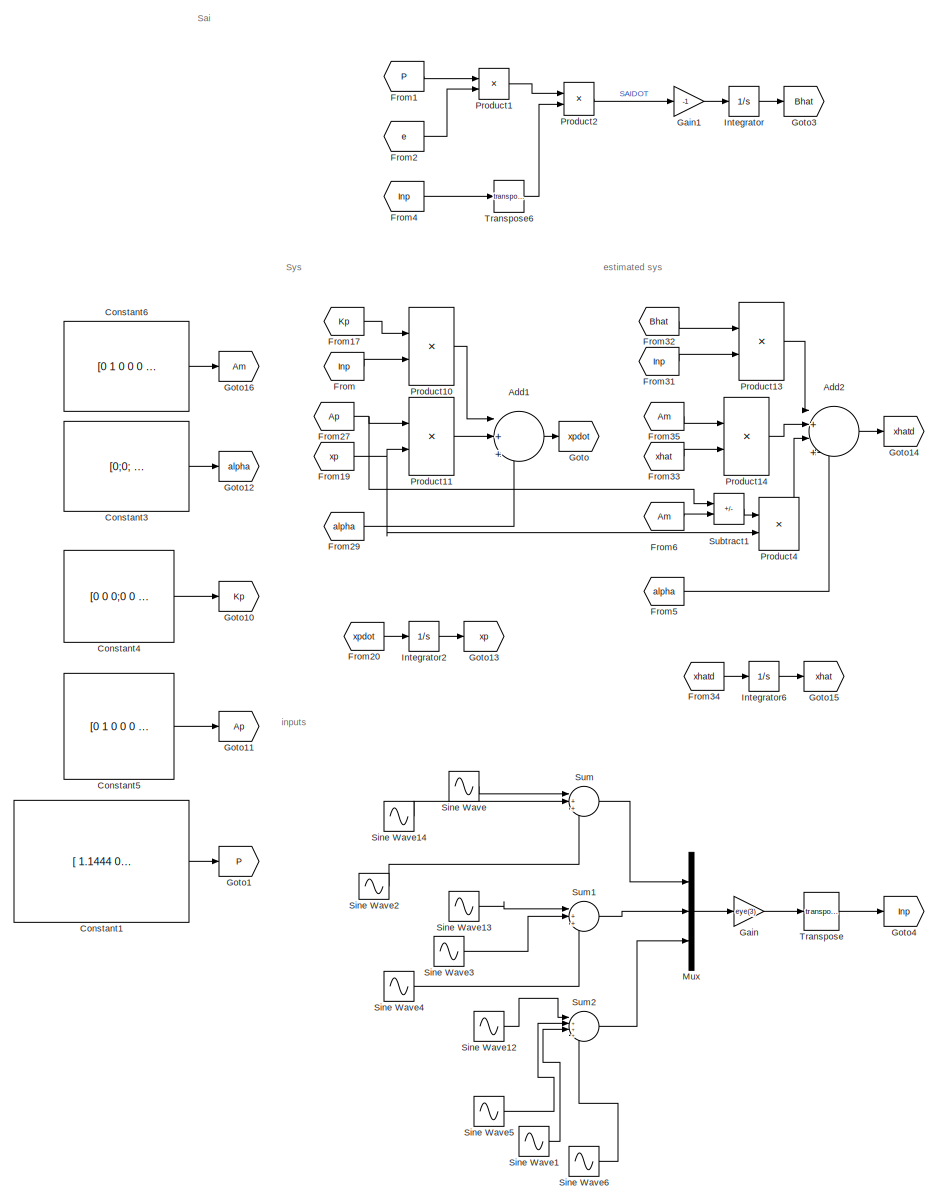
[diagram: root canvas - part 1/2, center side, full height]
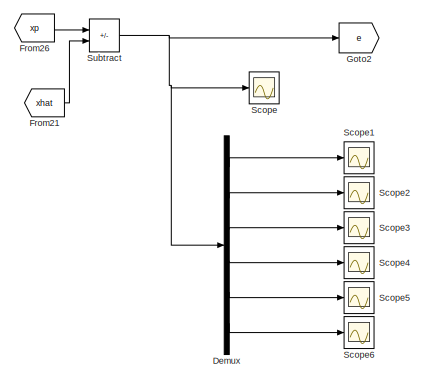
[diagram: root canvas - part 2/2, middle right region]
MODEL slx_e823e4a5ee32
KIND model
CONFIG AbsTol = auto
CONFIG EnableMultiTasking = off
CONFIG FixedStep = auto
CONFIG MaxStep = auto
CONFIG MinStep = auto
CONFIG RelTol = 1e-3
CONFIG SampleTimeConstraint = Unconstrained
CONFIG SolverName = VariableStepAuto
CONFIG StartTime = 0.0
CONFIG StopTime = 30.0
BLOCK [Sum] Add1
  Inputs = |++|+
BLOCK [Sum] Add2
  Inputs = |+|+|+|+
BLOCK [Constant] Constant1
  Value = [ 1.1444  0.1250  0      0      0      0;\n      0.1250  0.1736  0      0      0      0;\n      0       0       1.1444 0.1250 0      0;\n      0       0       0.1250 0.1736 0      0;\n      0       0       0      0      1.1444 0.1250;\n      0       0       0      0      0.1250 0.1736 ]
BLOCK [Constant] Constant3
  Value = [0;0;      0 ;\n      0 ;  -9.806 ;      0 ];
BLOCK [Constant] Constant4
  Value = [0 0 0;0 0 0;0 0 0 ;1/2.5 0 0  ; 0 1/2.5  0;0 0 1/0.03];
BLOCK [Constant] Constant5
  Value = [0 1 0 0 0 0;      0 0 0 0 0 0;\n      0 0 0 1 0 0;      0 0 0 0 0 0;\n      0 0 0 0 0 1;      0 0 0 0 0 0]
BLOCK [Constant] Constant6
  Value = [0 1 0 0 0 0;\n        -2^2 -2*0.9*2 0 0 0 0;\n         0 0 0 1 0 0;\n         0 0 -2^2 -2*0.9*2 0 0;\n         0 0 0 0 0 1;\n         0 0 0 0 -2^2 -2*0.9*2]
BLOCK [Demux] Demux
  Outputs = 6
BLOCK [From] From
  GotoTag = Inp
BLOCK [From] From1
  GotoTag = P
BLOCK [From] From17
  GotoTag = Kp
BLOCK [From] From19
  GotoTag = xp
BLOCK [From] From2
  GotoTag = e
BLOCK [From] From20
  GotoTag = xpdot
BLOCK [From] From21
  GotoTag = xhat
BLOCK [From] From26
  GotoTag = xp
BLOCK [From] From27
  GotoTag = Ap
BLOCK [From] From29
  GotoTag = alpha
BLOCK [From] From31
  GotoTag = Inp
BLOCK [From] From32
  GotoTag = Bhat
BLOCK [From] From33
  GotoTag = xhat
BLOCK [From] From34
  GotoTag = xhatd
BLOCK [From] From35
  GotoTag = Am
BLOCK [From] From4
  GotoTag = Inp
BLOCK [From] From5
  GotoTag = alpha
BLOCK [From] From6
  GotoTag = Am
BLOCK [Gain] Gain
  Gain = eye(3)
  Multiplication = Matrix(u*K)
BLOCK [Gain] Gain1
  Gain = -1
BLOCK [Goto] Goto
  GotoTag = xpdot
BLOCK [Goto] Goto1
  GotoTag = P
BLOCK [Goto] Goto10
  GotoTag = Kp
BLOCK [Goto] Goto11
  GotoTag = Ap
BLOCK [Goto] Goto12
  GotoTag = alpha
BLOCK [Goto] Goto13
  GotoTag = xp
BLOCK [Goto] Goto14
  GotoTag = xhatd
BLOCK [Goto] Goto15
  GotoTag = xhat
BLOCK [Goto] Goto16
  GotoTag = Am
BLOCK [Goto] Goto2
  GotoTag = e
BLOCK [Goto] Goto3
  GotoTag = Bhat
BLOCK [Goto] Goto4
  GotoTag = Inp
BLOCK [Integrator] Integrator
BLOCK [Integrator] Integrator2
  InitialCondition = [0 ;0; 0;0;0;0]
BLOCK [Integrator] Integrator6
  InitialCondition = [0; 0; 0;0;0;0]
BLOCK [Mux] Mux
  DisplayOption = bar
  Inputs = 3
BLOCK [Product] Product1
  Multiplication = Matrix(*)
BLOCK [Product] Product10
  Multiplication = Matrix(*)
BLOCK [Product] Product11
  Multiplication = Matrix(*)
BLOCK [Product] Product13
  Multiplication = Matrix(*)
BLOCK [Product] Product14
  Multiplication = Matrix(*)
BLOCK [Product] Product2
  Multiplication = Matrix(*)
BLOCK [Product] Product4
  Multiplication = Matrix(*)
BLOCK [Scope] Scope
  Floating = off
  NumInputPorts = 1
  ScopeSpecificationString = Simulink.scopes.TimeScopeBlockCfg('CurrentConfiguration', extmgr.ConfigurationSet(extmgr.Configuration('Core','General UI',true,'FigureColor',[1 1 1]),extmgr.Configuration('Core','Source UI',true),extmgr.Configuration('Sources','WiredSimulink',true,'DataLoggingVariableName','ScopeData1'),extmgr.Configuration('Visuals','Time Domain',true,'SerializedDisplays',{struct('MinYLimReal','-75.42531','MaxYL...<+1699ch>
BLOCK [Scope] Scope1
  Floating = off
  NumInputPorts = 1
  ScopeSpecificationString = Simulink.scopes.TimeScopeBlockCfg('CurrentConfiguration', extmgr.ConfigurationSet(extmgr.Configuration('Core','General UI',true),extmgr.Configuration('Core','Source UI',true),extmgr.Configuration('Sources','WiredSimulink',true,'DataLoggingVariableName','ScopeData2'),extmgr.Configuration('Visuals','Time Domain',true,'SerializedDisplays',{struct('MinYLimReal','-1.00000','MaxYLimReal','1.00000','YLab...<+1366ch>
BLOCK [Scope] Scope2
  Floating = off
  NumInputPorts = 1
  ScopeSpecificationString = Simulink.scopes.TimeScopeBlockCfg('CurrentConfiguration', extmgr.ConfigurationSet(extmgr.Configuration('Core','General UI',true),extmgr.Configuration('Core','Source UI',true),extmgr.Configuration('Sources','WiredSimulink',true,'DataLoggingVariableName','ScopeData3'),extmgr.Configuration('Visuals','Time Domain',true,'SerializedDisplays',{struct('MinYLimReal','-1.00000','MaxYLimReal','1.00000','YLab...<+1366ch>
BLOCK [Scope] Scope3
  Floating = off
  NumInputPorts = 1
  ScopeSpecificationString = Simulink.scopes.TimeScopeBlockCfg('CurrentConfiguration', extmgr.ConfigurationSet(extmgr.Configuration('Core','General UI',true),extmgr.Configuration('Core','Source UI',true),extmgr.Configuration('Sources','WiredSimulink',true),extmgr.Configuration('Visuals','Time Domain',true,'SerializedDisplays',{struct('MinYLimReal','-0.06771','MaxYLimReal','0.09312','YLabelReal','','MinYLimMag','0.00000','MaxY...<+1327ch>
BLOCK [Scope] Scope4
  Floating = off
  NumInputPorts = 1
  ScopeSpecificationString = Simulink.scopes.TimeScopeBlockCfg('CurrentConfiguration', extmgr.ConfigurationSet(extmgr.Configuration('Core','General UI',true),extmgr.Configuration('Core','Source UI',true),extmgr.Configuration('Sources','WiredSimulink',true,'DataLoggingVariableName','ScopeData4'),extmgr.Configuration('Visuals','Time Domain',true,'SerializedDisplays',{struct('MinYLimReal','-0.37277','MaxYLimReal','0.32005','YLab...<+1366ch>
BLOCK [Scope] Scope5
  Floating = off
  NumInputPorts = 1
  ScopeSpecificationString = Simulink.scopes.TimeScopeBlockCfg('CurrentConfiguration', extmgr.ConfigurationSet(extmgr.Configuration('Core','General UI',true),extmgr.Configuration('Core','Source UI',true),extmgr.Configuration('Sources','WiredSimulink',true,'DataLoggingVariableName','ScopeData5'),extmgr.Configuration('Visuals','Time Domain',true,'SerializedDisplays',{struct('MinYLimReal','-4.76076','MaxYLimReal','14.06103','YLa...<+1370ch>
BLOCK [Scope] Scope6
  Floating = off
  NumInputPorts = 1
  ScopeSpecificationString = Simulink.scopes.TimeScopeBlockCfg('CurrentConfiguration', extmgr.ConfigurationSet(extmgr.Configuration('Core','General UI',true),extmgr.Configuration('Core','Source UI',true),extmgr.Configuration('Sources','WiredSimulink',true,'DataLoggingVariableName','ScopeData6'),extmgr.Configuration('Visuals','Time Domain',true,'SerializedDisplays',{struct('MinYLimReal','-74.82932','MaxYLimReal','16.54871','YL...<+1372ch>
BLOCK [Sin] Sine Wave
  SampleTime = 0
BLOCK [Sin] Sine Wave1
  Amplitude = 9
  Frequency = 9
  SampleTime = 0
BLOCK [Sin] Sine Wave12
  Amplitude = 7
  Frequency = 7
  SampleTime = 0
BLOCK [Sin] Sine Wave13
  Frequency = 4
  SampleTime = 0
BLOCK [Sin] Sine Wave14
  Frequency = 2
  SampleTime = 0
BLOCK [Sin] Sine Wave2
  Amplitude = 2
  Frequency = 3
  SampleTime = 0
BLOCK [Sin] Sine Wave3
  Amplitude = 3
  Frequency = 5
  SampleTime = 0
BLOCK [Sin] Sine Wave4
  Amplitude = 6
  Frequency = 6
  SampleTime = 0
BLOCK [Sin] Sine Wave5
  Amplitude = 8
  Frequency = 8
  SampleTime = 0
BLOCK [Sin] Sine Wave6
  Amplitude = 10
  Frequency = 10
  SampleTime = 0
BLOCK [Sum] Subtract
  IconShape = rectangular
  Inputs = -+
BLOCK [Sum] Subtract1
  IconShape = rectangular
  Inputs = +-
BLOCK [Sum] Sum
  Inputs = |+++
BLOCK [Sum] Sum1
  Inputs = |+++
BLOCK [Sum] Sum2
  Inputs = |++++
BLOCK [Math] Transpose
  Operator = transpose
BLOCK [Math] Transpose6
  Operator = transpose
ANNOTATION (root): Sai
ANNOTATION (root): Sys
ANNOTATION (root): estimated sys
ANNOTATION (root): inputs
LINE Add1:1 -> Goto:1
LINE Add2:1 -> Goto14:1
LINE Constant1:1 -> Goto1:1
LINE Constant3:1 -> Goto12:1
LINE Constant4:1 -> Goto10:1
LINE Constant5:1 -> Goto11:1
LINE Constant6:1 -> Goto16:1
LINE Demux:1 -> Scope1:1
LINE Demux:2 -> Scope2:1
LINE Demux:3 -> Scope3:1
LINE Demux:4 -> Scope4:1
LINE Demux:5 -> Scope5:1
LINE Demux:6 -> Scope6:1
LINE From17:1 -> Product10:1
NET From19:1 -> Product11:2, Product4:2
LINE From1:1 -> Product1:1
LINE From20:1 -> Integrator2:1
LINE From21:1 -> Subtract:2
LINE From26:1 -> Subtract:1
NET From27:1 -> Product11:1, Subtract1:1
LINE From29:1 -> Add1:3
LINE From2:1 -> Product1:2
LINE From31:1 -> Product13:2
LINE From32:1 -> Product13:1
LINE From33:1 -> Product14:2
LINE From34:1 -> Integrator6:1
LINE From35:1 -> Product14:1
LINE From4:1 -> Transpose6:1
LINE From5:1 -> Add2:4
LINE From6:1 -> Subtract1:2
LINE From:1 -> Product10:2
LINE Gain1:1 -> Integrator:1
LINE Gain:1 -> Transpose:1
LINE Integrator2:1 -> Goto13:1
LINE Integrator6:1 -> Goto15:1
LINE Integrator:1 -> Goto3:1
LINE Mux:1 -> Gain:1
LINE Product10:1 -> Add1:1
LINE Product11:1 -> Add1:2
LINE Product13:1 -> Add2:1
LINE Product14:1 -> Add2:2
LINE Product1:1 -> Product2:1
LINE Product2:1 -> Gain1:1
LINE Product4:1 -> Add2:3
LINE Sine Wave12:1 -> Sum2:1
LINE Sine Wave13:1 -> Sum1:1
LINE Sine Wave14:1 -> Sum:2
LINE Sine Wave1:1 -> Sum2:3
LINE Sine Wave2:1 -> Sum:3
LINE Sine Wave3:1 -> Sum1:2
LINE Sine Wave4:1 -> Sum1:3
LINE Sine Wave5:1 -> Sum2:2
LINE Sine Wave6:1 -> Sum2:4
LINE Sine Wave:1 -> Sum:1
LINE Subtract1:1 -> Product4:1
NET Subtract:1 -> Demux:1, Goto2:1, Scope:1
LINE Sum1:1 -> Mux:2
LINE Sum2:1 -> Mux:3
LINE Sum:1 -> Mux:1
LINE Transpose6:1 -> Product2:2
LINE Transpose:1 -> Goto4:1
note: NET lines group one-source signal fan-out (src -> all destinations, sorted); 1:1 wires keep LINE
